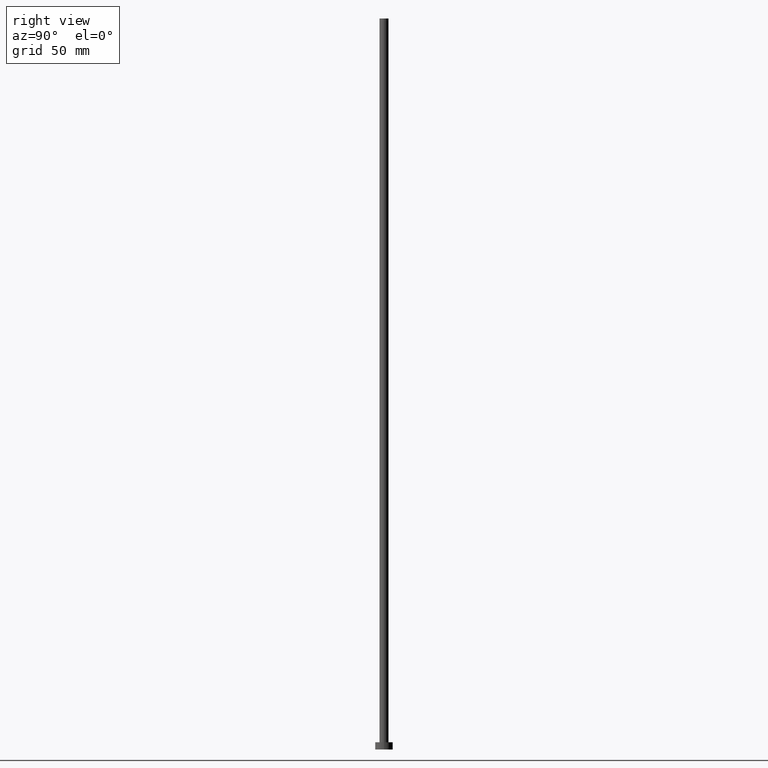
[diagram: clean part render]
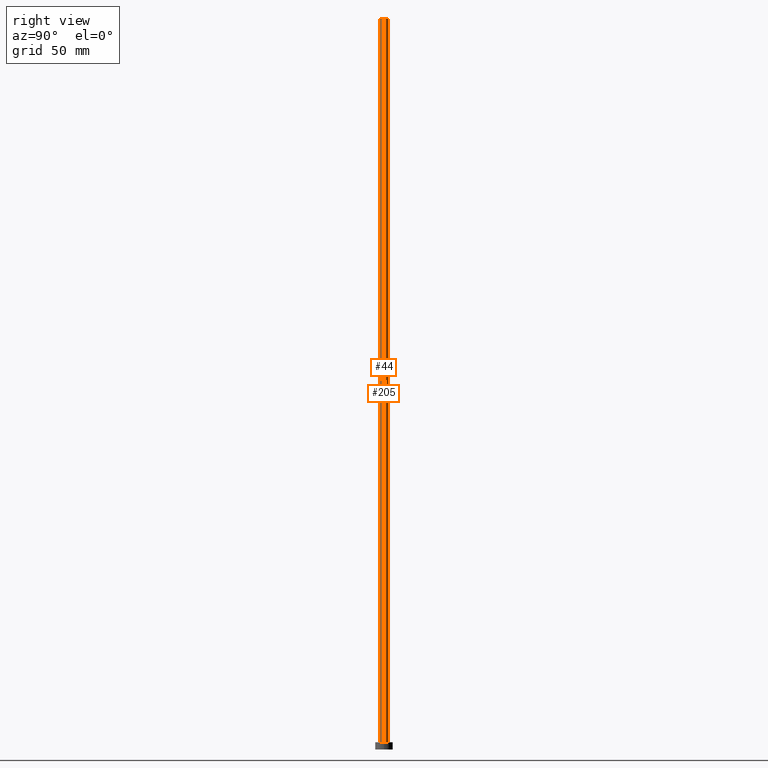
[diagram: same view with one multi-face feature highlighted, each face labeled with its STEP entity id]
A machine part, right view. The highlighted faces form ONE feature: a constant-radius fillet chain: 2 tangent blend faces with common blend radius 3.1 mm. The faces share edges in the B-rep.
Their STEP definitions:
[1] entity #44 (Cylinder):
#21 = CIRCLE ( 'NONE', #172, 3.100000000000000089 ) ;
#23 = ORIENTED_EDGE ( 'NONE', *, *, #151, .T. ) ;
#36 = EDGE_CURVE ( 'NONE', #207, #107, #59, .T. ) ;
#43 = DIRECTION ( 'NONE',  ( -0.000000000000000000, -0.000000000000000000, -1.000000000000000000 ) ) ;
#44 = ADVANCED_FACE ( 'NONE', ( #193 ), #153, .T. ) ;
#45 = CARTESIAN_POINT ( 'NONE',  ( -3.100000000000000089, 0.000000000000000000, 500.0000000000000000 ) ) ;
#47 = VERTEX_POINT ( 'NONE', #73 ) ;
#59 = CIRCLE ( 'NONE', #176, 3.100000000000000089 ) ;
#60 = ORIENTED_EDGE ( 'NONE', *, *, #36, .F. ) ;
#69 = CARTESIAN_POINT ( 'NONE',  ( 3.100000000000000089, 3.796405077356794918E-16, 500.0000000000000000 ) ) ;
#73 = CARTESIAN_POINT ( 'NONE',  ( 3.100000000000000089, 3.796405077356794918E-16, 5.000000000000000000 ) ) ;
#84 = CARTESIAN_POINT ( 'NONE',  ( -3.100000000000000089, 0.000000000000000000, 5.000000000000000000 ) ) ;
#89 = LINE ( 'NONE', #45, #150 ) ;
#101 = DIRECTION ( 'NONE',  ( -0.000000000000000000, -0.000000000000000000, -1.000000000000000000 ) ) ;
#102 = EDGE_CURVE ( 'NONE', #107, #47, #241, .T. ) ;
#107 = VERTEX_POINT ( 'NONE', #210 ) ;
#111 = CARTESIAN_POINT ( 'NONE',  ( 0.000000000000000000, 0.000000000000000000, 500.0000000000000000 ) ) ;
#114 = VERTEX_POINT ( 'NONE', #84 ) ;
#117 = DIRECTION ( 'NONE',  ( -0.000000000000000000, -0.000000000000000000, -1.000000000000000000 ) ) ;
#125 = CARTESIAN_POINT ( 'NONE',  ( 0.000000000000000000, 0.000000000000000000, 500.0000000000000000 ) ) ;
#129 = AXIS2_PLACEMENT_3D ( 'NONE', #111, #117, #245 ) ;
#131 = DIRECTION ( 'NONE',  ( 1.000000000000000000, 0.000000000000000000, 0.000000000000000000 ) ) ;
#145 = EDGE_CURVE ( 'NONE', #207, #114, #89, .T. ) ;
#148 = DIRECTION ( 'NONE',  ( 1.000000000000000000, 0.000000000000000000, 0.000000000000000000 ) ) ;
#149 = DIRECTION ( 'NONE',  ( 0.000000000000000000, 0.000000000000000000, 1.000000000000000000 ) ) ;
#150 = VECTOR ( 'NONE', #43, 1000.000000000000000 ) ;
#151 = EDGE_CURVE ( 'NONE', #114, #47, #21, .T. ) ;
#152 = EDGE_LOOP ( 'NONE', ( #217, #60, #252, #23 ) ) ;
#153 = CYLINDRICAL_SURFACE ( 'NONE', #129, 3.100000000000000089 ) ;
#171 = CARTESIAN_POINT ( 'NONE',  ( 0.000000000000000000, 0.000000000000000000, 5.000000000000000000 ) ) ;
#172 = AXIS2_PLACEMENT_3D ( 'NONE', #171, #149, #131 ) ;
#176 = AXIS2_PLACEMENT_3D ( 'NONE', #125, #242, #148 ) ;
#193 = FACE_OUTER_BOUND ( 'NONE', #152, .T. ) ;
#206 = CARTESIAN_POINT ( 'NONE',  ( -3.100000000000000089, 0.000000000000000000, 500.0000000000000000 ) ) ;
#207 = VERTEX_POINT ( 'NONE', #206 ) ;
#210 = CARTESIAN_POINT ( 'NONE',  ( 3.100000000000000089, 3.796405077356794918E-16, 500.0000000000000000 ) ) ;
#217 = ORIENTED_EDGE ( 'NONE', *, *, #102, .F. ) ;
#241 = LINE ( 'NONE', #69, #247 ) ;
#242 = DIRECTION ( 'NONE',  ( 0.000000000000000000, 0.000000000000000000, 1.000000000000000000 ) ) ;
#245 = DIRECTION ( 'NONE',  ( -1.000000000000000000, 0.000000000000000000, 0.000000000000000000 ) ) ;
#247 = VECTOR ( 'NONE', #101, 1000.000000000000000 ) ;
#252 = ORIENTED_EDGE ( 'NONE', *, *, #145, .T. ) ;
[2] entity #205 (Cylinder):
#26 = EDGE_CURVE ( 'NONE', #47, #114, #211, .T. ) ;
#28 = ORIENTED_EDGE ( 'NONE', *, *, #208, .F. ) ;
#40 = EDGE_LOOP ( 'NONE', ( #28, #135, #68, #63 ) ) ;
#43 = DIRECTION ( 'NONE',  ( -0.000000000000000000, -0.000000000000000000, -1.000000000000000000 ) ) ;
#45 = CARTESIAN_POINT ( 'NONE',  ( -3.100000000000000089, 0.000000000000000000, 500.0000000000000000 ) ) ;
#47 = VERTEX_POINT ( 'NONE', #73 ) ;
#58 = DIRECTION ( 'NONE',  ( 0.000000000000000000, 0.000000000000000000, 1.000000000000000000 ) ) ;
#63 = ORIENTED_EDGE ( 'NONE', *, *, #145, .F. ) ;
#68 = ORIENTED_EDGE ( 'NONE', *, *, #26, .T. ) ;
#69 = CARTESIAN_POINT ( 'NONE',  ( 3.100000000000000089, 3.796405077356794918E-16, 500.0000000000000000 ) ) ;
#73 = CARTESIAN_POINT ( 'NONE',  ( 3.100000000000000089, 3.796405077356794918E-16, 5.000000000000000000 ) ) ;
#84 = CARTESIAN_POINT ( 'NONE',  ( -3.100000000000000089, 0.000000000000000000, 5.000000000000000000 ) ) ;
#85 = DIRECTION ( 'NONE',  ( 0.000000000000000000, 0.000000000000000000, 1.000000000000000000 ) ) ;
#87 = AXIS2_PLACEMENT_3D ( 'NONE', #146, #225, #128 ) ;
#89 = LINE ( 'NONE', #45, #150 ) ;
#101 = DIRECTION ( 'NONE',  ( -0.000000000000000000, -0.000000000000000000, -1.000000000000000000 ) ) ;
#102 = EDGE_CURVE ( 'NONE', #107, #47, #241, .T. ) ;
#107 = VERTEX_POINT ( 'NONE', #210 ) ;
#114 = VERTEX_POINT ( 'NONE', #84 ) ;
#120 = AXIS2_PLACEMENT_3D ( 'NONE', #190, #85, #169 ) ;
#121 = DIRECTION ( 'NONE',  ( 1.000000000000000000, 0.000000000000000000, 0.000000000000000000 ) ) ;
#128 = DIRECTION ( 'NONE',  ( -1.000000000000000000, 0.000000000000000000, 0.000000000000000000 ) ) ;
#135 = ORIENTED_EDGE ( 'NONE', *, *, #102, .T. ) ;
#139 = AXIS2_PLACEMENT_3D ( 'NONE', #156, #58, #121 ) ;
#145 = EDGE_CURVE ( 'NONE', #207, #114, #89, .T. ) ;
#146 = CARTESIAN_POINT ( 'NONE',  ( 0.000000000000000000, 0.000000000000000000, 500.0000000000000000 ) ) ;
#150 = VECTOR ( 'NONE', #43, 1000.000000000000000 ) ;
#156 = CARTESIAN_POINT ( 'NONE',  ( 0.000000000000000000, 0.000000000000000000, 5.000000000000000000 ) ) ;
#167 = CYLINDRICAL_SURFACE ( 'NONE', #87, 3.100000000000000089 ) ;
#169 = DIRECTION ( 'NONE',  ( 1.000000000000000000, 0.000000000000000000, 0.000000000000000000 ) ) ;
#190 = CARTESIAN_POINT ( 'NONE',  ( 0.000000000000000000, 0.000000000000000000, 500.0000000000000000 ) ) ;
#192 = FACE_OUTER_BOUND ( 'NONE', #40, .T. ) ;
#201 = CIRCLE ( 'NONE', #120, 3.100000000000000089 ) ;
#205 = ADVANCED_FACE ( 'NONE', ( #192 ), #167, .T. ) ;
#206 = CARTESIAN_POINT ( 'NONE',  ( -3.100000000000000089, 0.000000000000000000, 500.0000000000000000 ) ) ;
#207 = VERTEX_POINT ( 'NONE', #206 ) ;
#208 = EDGE_CURVE ( 'NONE', #107, #207, #201, .T. ) ;
#210 = CARTESIAN_POINT ( 'NONE',  ( 3.100000000000000089, 3.796405077356794918E-16, 500.0000000000000000 ) ) ;
#211 = CIRCLE ( 'NONE', #139, 3.100000000000000089 ) ;
#225 = DIRECTION ( 'NONE',  ( -0.000000000000000000, -0.000000000000000000, -1.000000000000000000 ) ) ;
#241 = LINE ( 'NONE', #69, #247 ) ;
#247 = VECTOR ( 'NONE', #101, 1000.000000000000000 ) ;